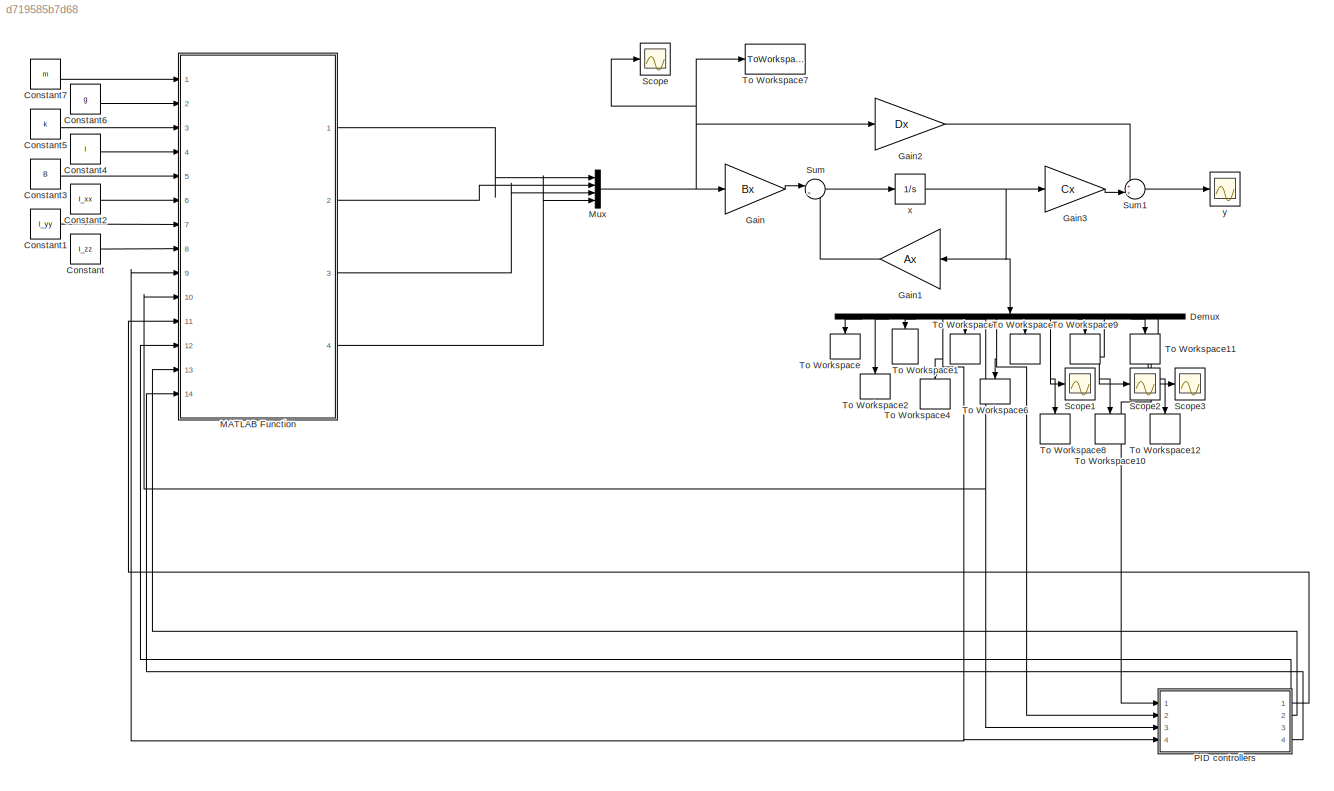
MODEL slx_d719585b7d68
KIND model
CONFIG AbsTol = auto
CONFIG EnableMultiTasking = on
CONFIG FixedStep = auto
CONFIG MaxStep = 0.01
CONFIG MinStep = auto
CONFIG RelTol = 1e-3
CONFIG SampleTimeConstraint = Unconstrained
CONFIG SolverName = ode45
CONFIG StartTime = 0.0
CONFIG StopTime = 10
BLOCK [Constant] Constant
  Value = I_zz
BLOCK [Constant] Constant1
  Value = I_yy
BLOCK [Constant] Constant2
  Value = I_xx
BLOCK [Constant] Constant3
  Value = B
BLOCK [Constant] Constant4
  Value = l
BLOCK [Constant] Constant5
  Value = k
BLOCK [Constant] Constant6
  Value = g
BLOCK [Constant] Constant7
  Value = m
BLOCK [Demux] Demux
  NameLocation = left
  Outputs = 12
  Ports = [1, 12]
BLOCK [Gain] Gain
  Gain = Bx
  Multiplication = Matrix(K*u) (u vector)
BLOCK [Gain] Gain1
  Gain = Ax
  Multiplication = Matrix(K*u) (u vector)
BLOCK [Gain] Gain2
  Gain = Dx
  Multiplication = Matrix(K*u) (u vector)
BLOCK [Gain] Gain3
  Gain = Cx
  Multiplication = Matrix(K*u) (u vector)
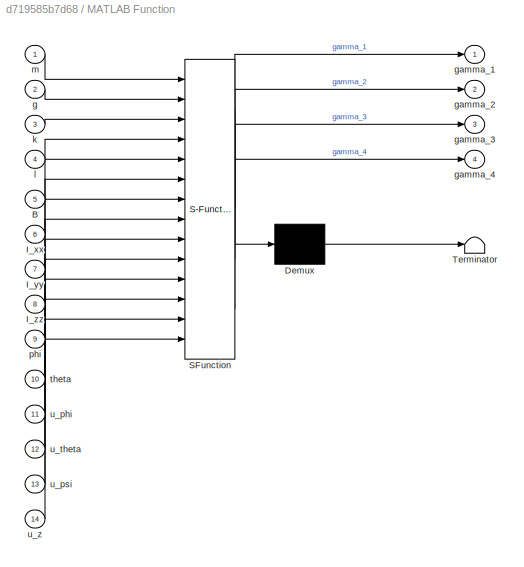
BLOCK [SubSystem] MATLAB Function
  ErrorFcn = Stateflow.Translate.translate
  PermitHierarchicalResolution = ExplicitOnly
  Ports = [14, 4]
  RequestExecContextInheritance = off
  SFBlockType = MATLAB Function
  TreatAsAtomicUnit = on
BLOCK [Demux] MATLAB Function/ Demux 
  Outputs = 1
  Ports = [1, 1]
BLOCK [S-Function] MATLAB Function/ SFunction 
  EnableBusSupport = on
  FunctionName = sf_sfun
  PortCounts = [14 5]
  Ports = [14, 5]
  SFcnIsStateOwnerBlock = off
  SFunctionDeploymentMode = off
  Tag = Stateflow S-Function 2
BLOCK [Terminator] MATLAB Function/ Terminator 
BLOCK [Inport] MATLAB Function/B
  Port = 5
BLOCK [Inport] MATLAB Function/I_xx
  Port = 6
BLOCK [Inport] MATLAB Function/I_yy
  Port = 7
BLOCK [Inport] MATLAB Function/I_zz
  Port = 8
BLOCK [Inport] MATLAB Function/g
  Port = 2
BLOCK [Outport] MATLAB Function/gamma_1
BLOCK [Outport] MATLAB Function/gamma_2
  Port = 2
BLOCK [Outport] MATLAB Function/gamma_3
  Port = 3
BLOCK [Outport] MATLAB Function/gamma_4
  Port = 4
BLOCK [Inport] MATLAB Function/k
  Port = 3
BLOCK [Inport] MATLAB Function/l
  Port = 4
BLOCK [Inport] MATLAB Function/m
BLOCK [Inport] MATLAB Function/phi
  Port = 9
BLOCK [Inport] MATLAB Function/theta
  Port = 10
BLOCK [Inport] MATLAB Function/u_phi
  Port = 11
BLOCK [Inport] MATLAB Function/u_psi
  Port = 13
BLOCK [Inport] MATLAB Function/u_theta
  Port = 12
BLOCK [Inport] MATLAB Function/u_z
  Port = 14
BLOCK [Mux] Mux
  DisplayOption = bar
  Ports = [4, 1]
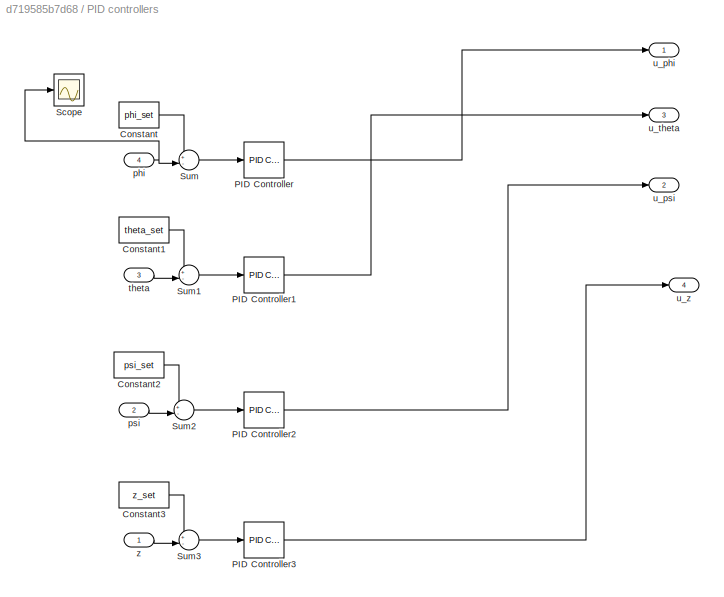
BLOCK [SubSystem] PID controllers
  Ports = [4, 4]
  RequestExecContextInheritance = off
BLOCK [Constant] PID controllers/Constant
  Value = phi_set
BLOCK [Constant] PID controllers/Constant1
  Value = theta_set
BLOCK [Constant] PID controllers/Constant2
  Value = psi_set
BLOCK [Constant] PID controllers/Constant3
  Value = z_set
BLOCK [Reference] PID controllers/PID Controller  REF=pid_lib/PID Controller
  Ports = [1, 1]
  SourceBlock = pid_lib/PID Controller
  SourceProductBaseCode = SL
  SourceType = PID 1dof
BLOCK [Reference] PID controllers/PID Controller1  REF=pid_lib/PID Controller
  Ports = [1, 1]
  SourceBlock = pid_lib/PID Controller
  SourceProductBaseCode = SL
  SourceType = PID 1dof
BLOCK [Reference] PID controllers/PID Controller2  REF=pid_lib/PID Controller
  Ports = [1, 1]
  SourceBlock = pid_lib/PID Controller
  SourceProductBaseCode = SL
  SourceType = PID 1dof
BLOCK [Reference] PID controllers/PID Controller3  REF=pid_lib/PID Controller
  Ports = [1, 1]
  SourceBlock = pid_lib/PID Controller
  SourceProductBaseCode = SL
  SourceType = PID 1dof
BLOCK [Scope] PID controllers/Scope
  Floating = off
  NumInputPorts = 1
  Ports = [1]
  ScopeSpecificationString = Simulink.scopes.TimeScopeBlockCfg('CurrentConfiguration', extmgr.ConfigurationSet(extmgr.Configuration('Core','General UI',true),extmgr.Configuration('Core','Source UI',true),extmgr.Configuration('Sources','WiredSimulink',true,'DataLoggingVariableName','ScopeData6'),extmgr.Configuration('Visuals','Time Domain',true,'SerializedDisplays',{struct('MinYLimReal','-137.12588','MaxYLimReal','100.92428','...<+1395ch>
BLOCK [Sum] PID controllers/Sum
  Inputs = +-|
  Ports = [2, 1]
BLOCK [Sum] PID controllers/Sum1
  Inputs = +-|
  Ports = [2, 1]
BLOCK [Sum] PID controllers/Sum2
  Inputs = +-|
  Ports = [2, 1]
BLOCK [Sum] PID controllers/Sum3
  Inputs = +-|
  Ports = [2, 1]
BLOCK [Inport] PID controllers/phi
  Port = 4
BLOCK [Inport] PID controllers/psi
  Port = 2
BLOCK [Inport] PID controllers/theta
  Port = 3
BLOCK [Outport] PID controllers/u_phi
BLOCK [Outport] PID controllers/u_psi
  Port = 2
BLOCK [Outport] PID controllers/u_theta
  Port = 3
BLOCK [Outport] PID controllers/u_z
  Port = 4
BLOCK [Inport] PID controllers/z
BLOCK [Scope] Scope
  Floating = off
  NumInputPorts = 1
  Ports = [1]
  ScopeSpecificationString = Simulink.scopes.TimeScopeBlockCfg('CurrentConfiguration', extmgr.ConfigurationSet(extmgr.Configuration('Core','General UI',true),extmgr.Configuration('Core','Source UI',true),extmgr.Configuration('Sources','WiredSimulink',true,'DataLoggingVariableName','ScopeData1'),extmgr.Configuration('Visuals','Time Domain',true,'SerializedDisplays',{struct('MinYLimReal','-36954713.76887','MaxYLimReal','3682143...<+1519ch>
BLOCK [Scope] Scope1
  Floating = off
  NumInputPorts = 1
  Ports = [1]
  ScopeSpecificationString = Simulink.scopes.TimeScopeBlockCfg('CurrentConfiguration', extmgr.ConfigurationSet(extmgr.Configuration('Core','General UI',true),extmgr.Configuration('Core','Source UI',true),extmgr.Configuration('Sources','WiredSimulink',true,'DataLoggingVariableName','ScopeData2'),extmgr.Configuration('Visuals','Time Domain',true,'SerializedDisplays',{struct('MinYLimReal','-4384585782207.02148','MaxYLimReal','48...<+1458ch>
BLOCK [Scope] Scope2
  Floating = off
  NumInputPorts = 1
  Ports = [1]
  ScopeSpecificationString = Simulink.scopes.TimeScopeBlockCfg('CurrentConfiguration', extmgr.ConfigurationSet(extmgr.Configuration('Core','General UI',true),extmgr.Configuration('Core','Source UI',true),extmgr.Configuration('Sources','WiredSimulink',true,'DataLoggingVariableName','ScopeData3'),extmgr.Configuration('Visuals','Time Domain',true),extmgr.Configuration('Tools','Plot Navigation',true),extmgr.Configuration('Tools',...<+40ch>
BLOCK [Scope] Scope3
  Floating = off
  NumInputPorts = 1
  Ports = [1]
  ScopeSpecificationString = Simulink.scopes.TimeScopeBlockCfg('CurrentConfiguration', extmgr.ConfigurationSet(extmgr.Configuration('Core','General UI',true),extmgr.Configuration('Core','Source UI',true),extmgr.Configuration('Sources','WiredSimulink',true,'DataLoggingVariableName','ScopeData4'),extmgr.Configuration('Visuals','Time Domain',true,'SerializedDisplays',{struct('MinYLimReal','9.99884','MaxYLimReal','10.00067','YLab...<+1446ch>
BLOCK [Sum] Sum
  Inputs = |++
  Ports = [2, 1]
BLOCK [Sum] Sum1
  Inputs = ++|
  Ports = [2, 1]
BLOCK [ToWorkspace] To Workspace
  FixptAsFi = on
  MaxDataPoints = inf
  NameLocation = left
  Ports = [1]
  SampleTime = -1
  SaveFormat = Structure With Time
  VariableName = w_Z
BLOCK [ToWorkspace] To Workspace1
  FixptAsFi = on
  MaxDataPoints = inf
  NameLocation = left
  Ports = [1]
  SampleTime = -1
  SaveFormat = Structure With Time
  VariableName = w_x
BLOCK [ToWorkspace] To Workspace10
  FixptAsFi = on
  MaxDataPoints = inf
  NameLocation = right
  Ports = [1]
  SampleTime = -1
  SaveFormat = Structure With Time
  VariableName = y
BLOCK [ToWorkspace] To Workspace11
  FixptAsFi = on
  MaxDataPoints = inf
  NameLocation = right
  Ports = [1]
  SampleTime = -1
  SaveFormat = Structure With Time
  VariableName = z_dot
BLOCK [ToWorkspace] To Workspace12
  FixptAsFi = on
  MaxDataPoints = inf
  NameLocation = right
  Ports = [1]
  SampleTime = -1
  SaveFormat = Structure With Time
  VariableName = z
BLOCK [ToWorkspace] To Workspace2
  FixptAsFi = on
  MaxDataPoints = inf
  NameLocation = left
  Ports = [1]
  SampleTime = -1
  SaveFormat = Structure With Time
  VariableName = w_y
BLOCK [ToWorkspace] To Workspace3
  FixptAsFi = on
  MaxDataPoints = inf
  NameLocation = right
  Ports = [1]
  SampleTime = -1
  SaveFormat = Structure With Time
  VariableName = theta
BLOCK [ToWorkspace] To Workspace4
  FixptAsFi = on
  MaxDataPoints = inf
  NameLocation = left
  Ports = [1]
  SampleTime = -1
  SaveFormat = Structure With Time
  VariableName = phi
BLOCK [ToWorkspace] To Workspace5
  FixptAsFi = on
  MaxDataPoints = inf
  NameLocation = right
  Ports = [1]
  SampleTime = -1
  SaveFormat = Structure With Time
  VariableName = x_dot
BLOCK [ToWorkspace] To Workspace6
  FixptAsFi = on
  MaxDataPoints = inf
  NameLocation = right
  Ports = [1]
  SampleTime = -1
  SaveFormat = Structure With Time
  VariableName = psi
BLOCK [ToWorkspace] To Workspace7
  FixptAsFi = on
  MaxDataPoints = inf
  Ports = [1]
  SampleTime = -1
  SaveFormat = Structure With Time
  VariableName = u
BLOCK [ToWorkspace] To Workspace8
  FixptAsFi = on
  MaxDataPoints = inf
  NameLocation = right
  Ports = [1]
  SampleTime = -1
  SaveFormat = Structure With Time
  VariableName = x
BLOCK [ToWorkspace] To Workspace9
  FixptAsFi = on
  MaxDataPoints = inf
  NameLocation = right
  Ports = [1]
  SampleTime = -1
  SaveFormat = Structure With Time
  VariableName = y_dot
BLOCK [Integrator] x
  Ports = [1, 1]
BLOCK [Scope] y
  Floating = off
  NumInputPorts = 1
  Ports = [1]
  ScopeSpecificationString = Simulink.scopes.TimeScopeBlockCfg('CurrentConfiguration', extmgr.ConfigurationSet(extmgr.Configuration('Core','General UI',true),extmgr.Configuration('Core','Source UI',true),extmgr.Configuration('Sources','WiredSimulink',true,'DataLoggingSaveFormat','StructureWithTime','DataLoggingLimitDataPoints',true,'DataLoggingDecimation','1','DataLoggingDecimateData',true),extmgr.Configuration('Visuals','Tim...<+1766ch>
LINE Constant1:1 -> MATLAB Function:7
LINE Constant2:1 -> MATLAB Function:6
LINE Constant3:1 -> MATLAB Function:5
LINE Constant4:1 -> MATLAB Function:4
LINE Constant5:1 -> MATLAB Function:3
LINE Constant6:1 -> MATLAB Function:2
LINE Constant7:1 -> MATLAB Function:1
LINE Constant:1 -> MATLAB Function:8
LINE Demux:1 -> To Workspace:1
NET Demux:10 -> Scope2:1, To Workspace10:1
LINE Demux:11 -> To Workspace11:1
NET Demux:12 -> PID controllers:1, Scope3:1, To Workspace12:1
LINE Demux:2 -> To Workspace2:1
LINE Demux:3 -> To Workspace1:1
NET Demux:4 -> MATLAB Function:9, PID controllers:4, To Workspace4:1
NET Demux:5 -> MATLAB Function:10, PID controllers:3, To Workspace3:1
NET Demux:6 -> PID controllers:2, To Workspace6:1
LINE Demux:7 -> To Workspace5:1
NET Demux:8 -> Scope1:1, To Workspace8:1
LINE Demux:9 -> To Workspace9:1
LINE Gain1:1 -> Sum:2
LINE Gain2:1 -> Sum1:1
LINE Gain3:1 -> Sum1:2
LINE Gain:1 -> Sum:1
LINE MATLAB Function:1 -> Mux:1
LINE MATLAB Function:2 -> Mux:2
LINE MATLAB Function:3 -> Mux:3
LINE MATLAB Function:4 -> Mux:4
NET Mux:1 -> Gain2:1, Gain:1, Scope:1, To Workspace7:1
LINE PID controllers/Constant1:1 -> PID controllers/Sum1:1
LINE PID controllers/Constant2:1 -> PID controllers/Sum2:1
LINE PID controllers/Constant3:1 -> PID controllers/Sum3:1
LINE PID controllers/Constant:1 -> PID controllers/Sum:1
LINE PID controllers/PID Controller1:1 -> PID controllers/u_theta:1
LINE PID controllers/PID Controller2:1 -> PID controllers/u_psi:1
LINE PID controllers/PID Controller3:1 -> PID controllers/u_z:1
LINE PID controllers/PID Controller:1 -> PID controllers/u_phi:1
LINE PID controllers/Sum1:1 -> PID controllers/PID Controller1:1
LINE PID controllers/Sum2:1 -> PID controllers/PID Controller2:1
LINE PID controllers/Sum3:1 -> PID controllers/PID Controller3:1
LINE PID controllers/Sum:1 -> PID controllers/PID Controller:1
NET PID controllers/phi:1 -> PID controllers/Scope:1, PID controllers/Sum:2
LINE PID controllers/psi:1 -> PID controllers/Sum2:2
LINE PID controllers/theta:1 -> PID controllers/Sum1:2
LINE PID controllers/z:1 -> PID controllers/Sum3:2
LINE PID controllers:1 -> MATLAB Function:11
LINE PID controllers:2 -> MATLAB Function:13
LINE PID controllers:3 -> MATLAB Function:12
LINE PID controllers:4 -> MATLAB Function:14
LINE Sum1:1 -> y:1
LINE Sum:1 -> x:1
NET x:1 -> Demux:1, Gain1:1, Gain3:1
note: NET lines group one-source signal fan-out (src -> all destinations, sorted); 1:1 wires keep LINE
CHART MATLAB Function states=1 transitions=1
  STATE_LABEL 'eML_blk_kernel()'
  STATE_LABEL 'SCRIPT:\nfunction [gamma_1,gamma_2, gamma_3, gamma_4]= fcn(m, g, k, l, B, I_xx, I_yy, I_zz,phi, theta, u_phi, u_theta, u_psi,u_z)\n\ngamma_1 = ((m*g+u_z*m)/(k*4*cos(theta)*cos(phi)))-((2*B*u_phi*I_xx+u_psi*I_zz*k*l)/(4*B*k*l));\ngamma_2 = ((m*g+u_z*m)/(k*4*cos(theta)*cos(phi)))-((2*B*u_theta*I_yy-u_psi*I_zz*k*l)/(4*B*k*l));\ngamma_3 = ((m*g+u_z*m)/(k*4*cos(theta)*cos(phi)))-((-2*B*u_phi*I_xx+u_psi*I_zz...<+120ch>'
CHART  states=0 transitions=0
